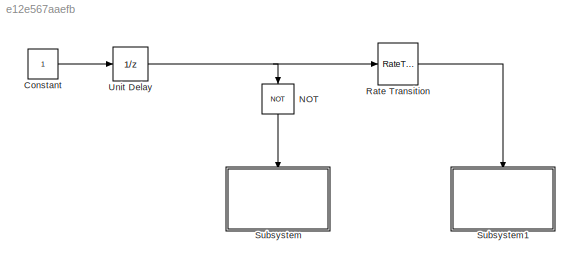
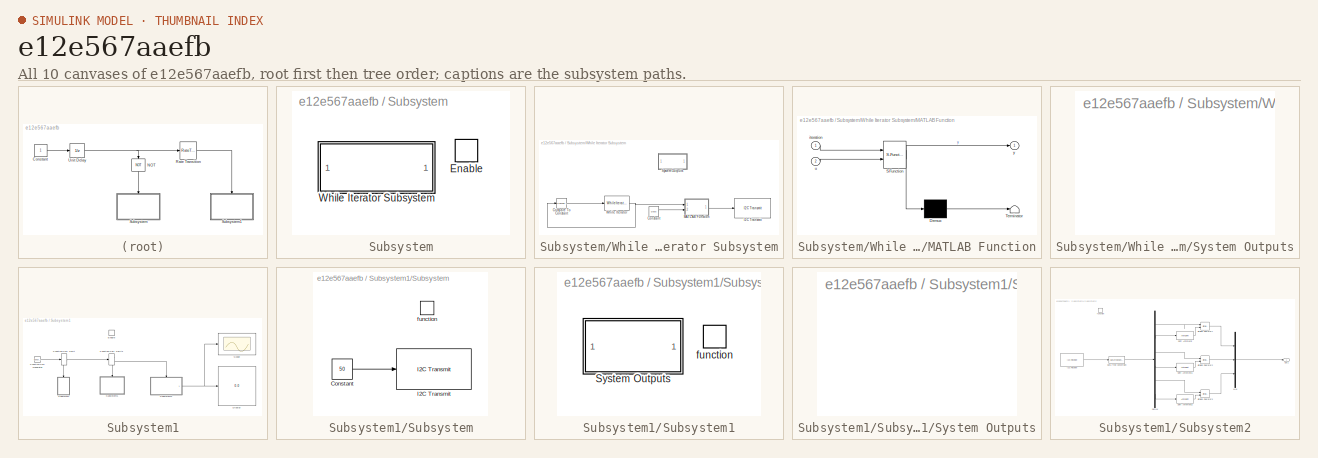
[diagram: thumbnail index - all 10 canvases of the model, root first then tree order]
MODEL slx_e12e567aaefb
KIND model
CONFIG AbsTol = auto
CONFIG EnableMultiTasking = on
CONFIG FixedStep = 0.02
CONFIG MaxStep = auto
CONFIG MinStep = auto
CONFIG RelTol = 1e-3
CONFIG SampleTimeConstraint = Unconstrained
CONFIG SolverName = FixedStepDiscrete
CONFIG StartTime = 0.0
CONFIG StopTime = Inf
BLOCK [Constant] Constant
BLOCK [Logic] NOT
  AllPortsSameDT = off
  NameLocation = left
  Operator = NOT
  OutDataTypeStr = boolean
  Ports = [1, 1]
BLOCK [RateTransition] Rate Transition
BLOCK [SubSystem] Subsystem
  Ports = [0, 0, 1]
  RequestExecContextInheritance = off
BLOCK [EnablePort] Subsystem/Enable
  Ports = []
BLOCK [SubSystem] Subsystem/While Iterator Subsystem
  Ports = []
  RequestExecContextInheritance = off
  TreatAsAtomicUnit = on
BLOCK [Reference] Subsystem/While Iterator Subsystem/Compare To Constant  REF=simulink/Logic and Bit
Operations/Compare
To Constant
  Ports = [1, 1]
  SourceBlock = simulink/Logic and Bit\nOperations/Compare\nTo Constant
  SourceProductBaseCode = SL
  SourceType = Compare To Constant
BLOCK [Constant] Subsystem/While Iterator Subsystem/Constant
  OutDataTypeStr = uint8
  Value = Data
BLOCK [Reference] Subsystem/While Iterator Subsystem/I2C Transmit  REF=c280xlib/I2C Transmit
  Ports = [1]
  SourceBlock = c280xlib/I2C Transmit
  SourceProductBaseCode = TIC2000
  SourceType = C28x I2C Transmit
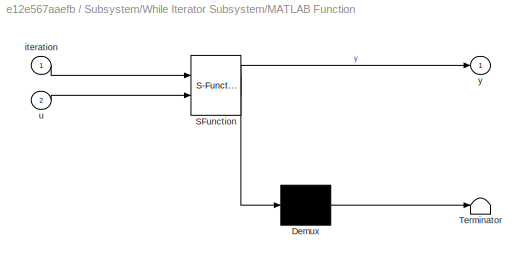
BLOCK [SubSystem] Subsystem/While Iterator Subsystem/MATLAB Function
  ErrorFcn = Stateflow.Translate.translate
  PermitHierarchicalResolution = ExplicitOnly
  Ports = [2, 1]
  RequestExecContextInheritance = off
  SFBlockType = MATLAB Function
  TreatAsAtomicUnit = on
BLOCK [Demux] Subsystem/While Iterator Subsystem/MATLAB Function/ Demux 
  Outputs = 1
  Ports = [1, 1]
BLOCK [S-Function] Subsystem/While Iterator Subsystem/MATLAB Function/ SFunction 
  EnableBusSupport = on
  FunctionName = sf_sfun
  PortCounts = [2 2]
  Ports = [2, 2]
  SFcnIsStateOwnerBlock = off
  SFunctionDeploymentMode = off
  Tag = Stateflow S-Function 2
BLOCK [Terminator] Subsystem/While Iterator Subsystem/MATLAB Function/ Terminator 
BLOCK [Inport] Subsystem/While Iterator Subsystem/MATLAB Function/iteration
BLOCK [Inport] Subsystem/While Iterator Subsystem/MATLAB Function/u
  Port = 2
BLOCK [Outport] Subsystem/While Iterator Subsystem/MATLAB Function/y
BLOCK [SubSystem] Subsystem/While Iterator Subsystem/System Outputs
  CopyFcn = cccopyfcn(gcb)
  OpenFcn = ccopenfcn('System Outputs Function')
  Ports = []
  RequestExecContextInheritance = off
BLOCK [WhileIterator] Subsystem/While Iterator Subsystem/While Iterator
  MaxIters = -1
  Ports = [1, 1]
  ShowIterationPort = on
  WhileBlockType = do-while
BLOCK [SubSystem] Subsystem1
  Ports = [0, 0, 1]
  RequestExecContextInheritance = off
BLOCK [Display] Subsystem1/Display
  Decimation = 1
  Ports = [1]
BLOCK [EnablePort] Subsystem1/Enable
  Ports = []
BLOCK [Reference] Subsystem1/Function-Call Generator  REF=simulink/Ports &
Subsystems/Function-Call
Generator
  Ports = [0, 1]
  SourceBlock = simulink/Ports &\nSubsystems/Function-Call\nGenerator
  SourceProductBaseCode = SL
  SourceType = Function-Call Generator
BLOCK [FunctionCallSplit] Subsystem1/Function-Call Split
  NumOutputPorts = 2
  Ports = [1, 2]
BLOCK [FunctionCallSplit] Subsystem1/Function-Call Split1
  NumOutputPorts = 2
  Ports = [1, 2]
BLOCK [Scope] Subsystem1/Scope
  Floating = off
  NumInputPorts = 1
  Ports = [1]
  ScopeSpecificationString = Simulink.scopes.TimeScopeBlockCfg('CurrentConfiguration', extmgr.ConfigurationSet(extmgr.Configuration('Core','General UI',true),extmgr.Configuration('Core','Source UI',true),extmgr.Configuration('Sources','WiredSimulink',true),extmgr.Configuration('Visuals','Time Domain',true,'SerializedDisplays',{struct('MinYLimReal','-215.00000','MaxYLimReal','355.00000','YLabelReal','','MinYLimMag',' 0.00000',...<+1401ch>
BLOCK [SubSystem] Subsystem1/Subsystem
  Ports = [0, 0, 0, 1]
  RequestExecContextInheritance = off
BLOCK [Constant] Subsystem1/Subsystem/Constant
  OutDataTypeStr = uint8
  Value = 50
BLOCK [Reference] Subsystem1/Subsystem/I2C Transmit  REF=c280xlib/I2C Transmit
  Ports = [1]
  SourceBlock = c280xlib/I2C Transmit
  SourceProductBaseCode = TIC2000
  SourceType = C28x I2C Transmit
BLOCK [TriggerPort] Subsystem1/Subsystem/function
  Ports = []
  StatesWhenEnabling = held
  TriggerType = function-call
  VariantControl = (inherit)
BLOCK [SubSystem] Subsystem1/Subsystem1
  Ports = [0, 0, 0, 1]
  RequestExecContextInheritance = off
BLOCK [SubSystem] Subsystem1/Subsystem1/System Outputs
  CopyFcn = cccopyfcn(gcb)
  OpenFcn = ccopenfcn('System Outputs Function')
  Ports = []
  RequestExecContextInheritance = off
BLOCK [TriggerPort] Subsystem1/Subsystem1/function
  Ports = []
  StatesWhenEnabling = held
  TriggerType = function-call
  VariantControl = (inherit)
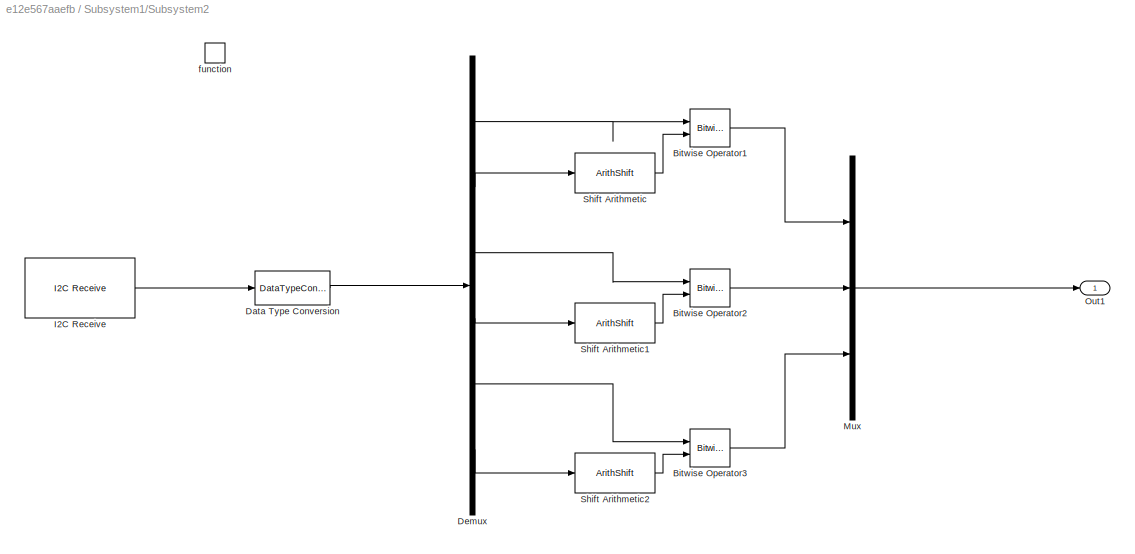
BLOCK [SubSystem] Subsystem1/Subsystem2
  Ports = [0, 1, 0, 1]
  RequestExecContextInheritance = off
BLOCK [Reference] Subsystem1/Subsystem2/Bitwise Operator1  REF=simulink/Logic and Bit
Operations/Bitwise
Operator
  Ports = [2, 1]
  SourceBlock = simulink/Logic and Bit\nOperations/Bitwise\nOperator
  SourceProductBaseCode = SL
  SourceType = Bitwise Operator
BLOCK [Reference] Subsystem1/Subsystem2/Bitwise Operator2  REF=simulink/Logic and Bit
Operations/Bitwise
Operator
  Ports = [2, 1]
  SourceBlock = simulink/Logic and Bit\nOperations/Bitwise\nOperator
  SourceProductBaseCode = SL
  SourceType = Bitwise Operator
BLOCK [Reference] Subsystem1/Subsystem2/Bitwise Operator3  REF=simulink/Logic and Bit
Operations/Bitwise
Operator
  Ports = [2, 1]
  SourceBlock = simulink/Logic and Bit\nOperations/Bitwise\nOperator
  SourceProductBaseCode = SL
  SourceType = Bitwise Operator
BLOCK [DataTypeConversion] Subsystem1/Subsystem2/Data Type Conversion
  ConvertRealWorld = Stored Integer (SI)
  OutDataTypeStr = int16
  RndMeth = Floor
  SaturateOnIntegerOverflow = off
BLOCK [Demux] Subsystem1/Subsystem2/Demux
  Outputs = 6
  Ports = [1, 6]
BLOCK [Reference] Subsystem1/Subsystem2/I2C Receive  REF=c280xlib/I2C Receive
  Ports = [0, 1]
  SourceBlock = c280xlib/I2C Receive
  SourceProductBaseCode = TIC2000
  SourceType = C28x I2C Receive
BLOCK [Mux] Subsystem1/Subsystem2/Mux
  DisplayOption = bar
  Inputs = 3
  Ports = [3, 1]
BLOCK [Outport] Subsystem1/Subsystem2/Out1
BLOCK [ArithShift] Subsystem1/Subsystem2/Shift Arithmetic
  BitShiftNumber = -8
  InputPortMap = u0
  Ports = [1, 1]
BLOCK [ArithShift] Subsystem1/Subsystem2/Shift Arithmetic1
  BitShiftNumber = -8
  InputPortMap = u0
  Ports = [1, 1]
BLOCK [ArithShift] Subsystem1/Subsystem2/Shift Arithmetic2
  BitShiftNumber = -8
  InputPortMap = u0
  Ports = [1, 1]
BLOCK [TriggerPort] Subsystem1/Subsystem2/function
  Ports = []
  StatesWhenEnabling = held
  TriggerType = function-call
  VariantControl = (inherit)
BLOCK [UnitDelay] Unit Delay
  HasFrameUpgradeWarning = on
  SampleTime = -1
LINE Constant:1 -> Unit Delay:1
LINE NOT:1 -> Subsystem:enable
LINE Rate Transition:1 -> Subsystem1:enable
LINE Subsystem/While Iterator Subsystem/Compare To Constant:1 -> Subsystem/While Iterator Subsystem/While Iterator:1
LINE Subsystem/While Iterator Subsystem/Constant:1 -> Subsystem/While Iterator Subsystem/MATLAB Function:2
LINE Subsystem/While Iterator Subsystem/MATLAB Function:1 -> Subsystem/While Iterator Subsystem/I2C Transmit:1
NET Subsystem/While Iterator Subsystem/While Iterator:1 -> Subsystem/While Iterator Subsystem/Compare To Constant:1, Subsystem/While Iterator Subsystem/MATLAB Function:1
LINE Subsystem1/Function-Call Generator:1 -> Subsystem1/Function-Call Split:1
LINE Subsystem1/Function-Call Split1:1 -> Subsystem1/Subsystem1:trigger
LINE Subsystem1/Function-Call Split1:2 -> Subsystem1/Subsystem2:trigger
LINE Subsystem1/Function-Call Split:1 -> Subsystem1/Subsystem:trigger
LINE Subsystem1/Function-Call Split:2 -> Subsystem1/Function-Call Split1:1
LINE Subsystem1/Subsystem/Constant:1 -> Subsystem1/Subsystem/I2C Transmit:1
LINE Subsystem1/Subsystem2/Bitwise Operator1:1 -> Subsystem1/Subsystem2/Mux:1
LINE Subsystem1/Subsystem2/Bitwise Operator2:1 -> Subsystem1/Subsystem2/Mux:2
LINE Subsystem1/Subsystem2/Bitwise Operator3:1 -> Subsystem1/Subsystem2/Mux:3
LINE Subsystem1/Subsystem2/Data Type Conversion:1 -> Subsystem1/Subsystem2/Demux:1
LINE Subsystem1/Subsystem2/Demux:1 -> Subsystem1/Subsystem2/Bitwise Operator1:1
LINE Subsystem1/Subsystem2/Demux:2 -> Subsystem1/Subsystem2/Shift Arithmetic:1
LINE Subsystem1/Subsystem2/Demux:3 -> Subsystem1/Subsystem2/Bitwise Operator2:1
LINE Subsystem1/Subsystem2/Demux:4 -> Subsystem1/Subsystem2/Shift Arithmetic1:1
LINE Subsystem1/Subsystem2/Demux:5 -> Subsystem1/Subsystem2/Bitwise Operator3:1
LINE Subsystem1/Subsystem2/Demux:6 -> Subsystem1/Subsystem2/Shift Arithmetic2:1
LINE Subsystem1/Subsystem2/I2C Receive:1 -> Subsystem1/Subsystem2/Data Type Conversion:1
LINE Subsystem1/Subsystem2/Mux:1 -> Subsystem1/Subsystem2/Out1:1
LINE Subsystem1/Subsystem2/Shift Arithmetic1:1 -> Subsystem1/Subsystem2/Bitwise Operator2:2
LINE Subsystem1/Subsystem2/Shift Arithmetic2:1 -> Subsystem1/Subsystem2/Bitwise Operator3:2
LINE Subsystem1/Subsystem2/Shift Arithmetic:1 -> Subsystem1/Subsystem2/Bitwise Operator1:2
NET Subsystem1/Subsystem2:1 -> Subsystem1/Display:1, Subsystem1/Scope:1
NET Unit Delay:1 -> NOT:1, Rate Transition:1
note: NET lines group one-source signal fan-out (src -> all destinations, sorted); 1:1 wires keep LINE
CHART Subsystem/While Iterator
Subsystem/MATLAB Function states=1 transitions=1
  STATE_LABEL 'eML_blk_kernel()'
  STATE_LABEL 'SCRIPT:\nfunction y = fcn(iteration, u)\ny = [u((iteration),1) u((iteration),2)];\n'
CHART  states=0 transitions=0
